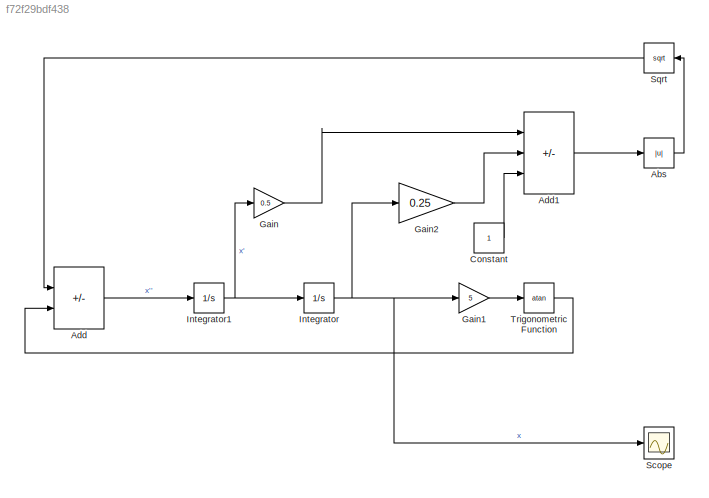
MODEL slx_f72f29bdf438
KIND model
CONFIG AbsTol = auto
CONFIG EnableMultiTasking = off
CONFIG FixedStep = auto
CONFIG MaxStep = auto
CONFIG MinStep = auto
CONFIG RelTol = 1e-3
CONFIG SampleTimeConstraint = Unconstrained
CONFIG SolverName = VariableStepAuto
CONFIG StartTime = 0.0
CONFIG StopTime = 25
BLOCK [Abs] Abs
  SaturateOnIntegerOverflow = off
BLOCK [Sum] Add
  IconShape = rectangular
  Inputs = --
BLOCK [Sum] Add1
  IconShape = rectangular
  Inputs = +-+
BLOCK [Constant] Constant
BLOCK [Gain] Gain
  Gain = 0.5
BLOCK [Gain] Gain1
  Gain = 5
BLOCK [Gain] Gain2
  Gain = 0.25
BLOCK [Integrator] Integrator
  InitialCondition = 1
BLOCK [Integrator] Integrator1
BLOCK [Scope] Scope
  Floating = off
  NumInputPorts = 1
  ScopeSpecificationString = Simulink.scopes.TimeScopeBlockCfg('CurrentConfiguration', extmgr.ConfigurationSet(extmgr.Configuration('Core','General UI',true),extmgr.Configuration('Core','Source UI',true),extmgr.Configuration('Sources','WiredSimulink',true),extmgr.Configuration('Visuals','Time Domain',true,'SerializedDisplays',{struct('MinYLimReal','-4.06397','MaxYLimReal','1.56266','YLabelReal','','MinYLimMag','0.00000','MaxY...<+1465ch>
BLOCK [Sqrt] Sqrt
  NameLocation = top
BLOCK [Trigonometry] Trigonometric Function
  Operator = atan
LINE Abs:1 -> Sqrt:1
LINE Add1:1 -> Abs:1
LINE Add:1 -> Integrator1:1
LINE Constant:1 -> Add1:3
LINE Gain1:1 -> Trigonometric Function:1
LINE Gain2:1 -> Add1:2
LINE Gain:1 -> Add1:1
NET Integrator1:1 -> Gain:1, Integrator:1
NET Integrator:1 -> Gain1:1, Gain2:1, Scope:1
LINE Sqrt:1 -> Add:1
LINE Trigonometric Function:1 -> Add:2
note: NET lines group one-source signal fan-out (src -> all destinations, sorted); 1:1 wires keep LINE
